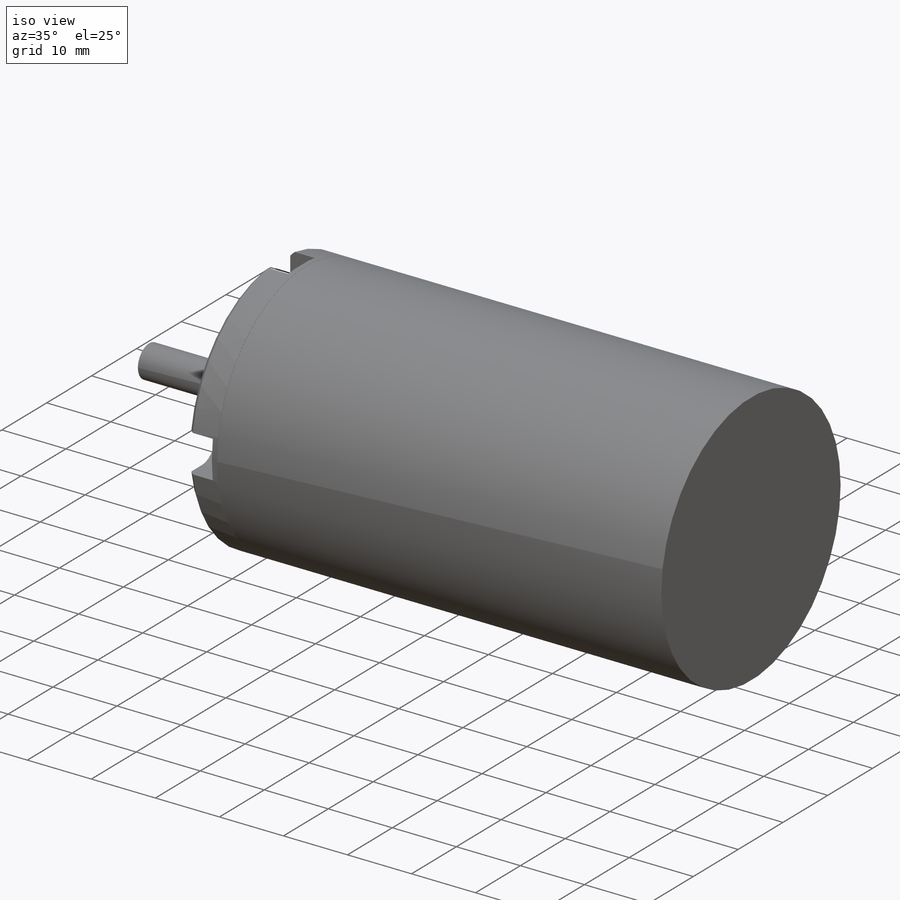
[diagram: iso view]
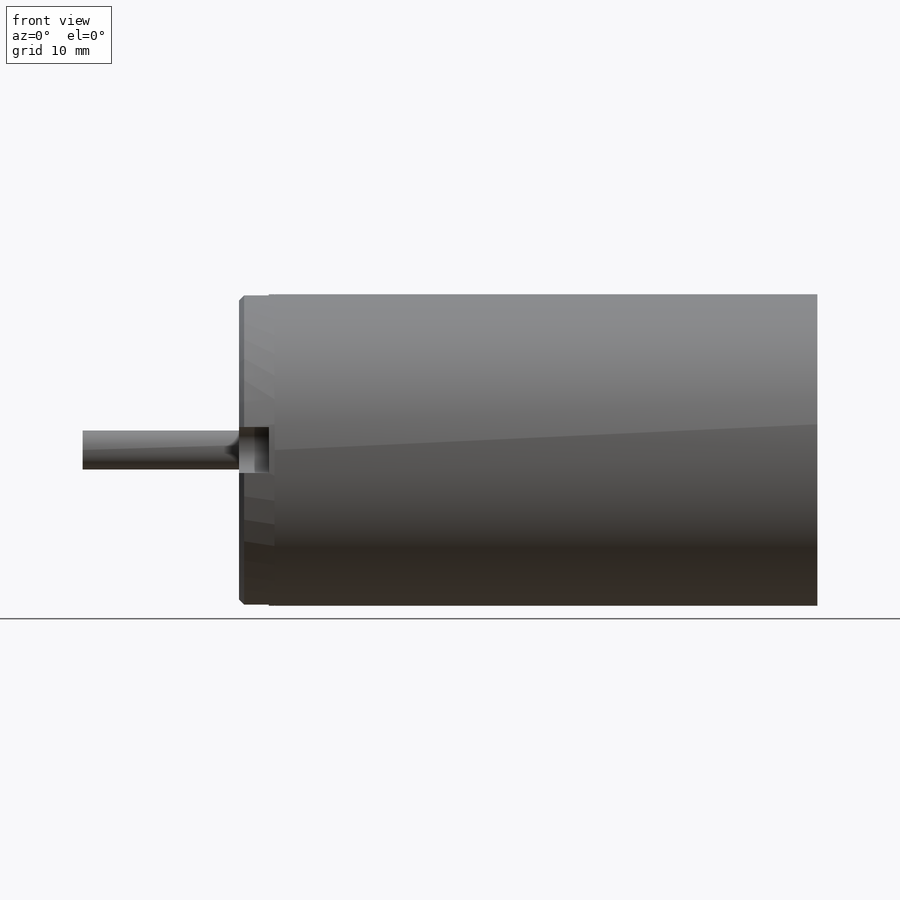
[diagram: front view]
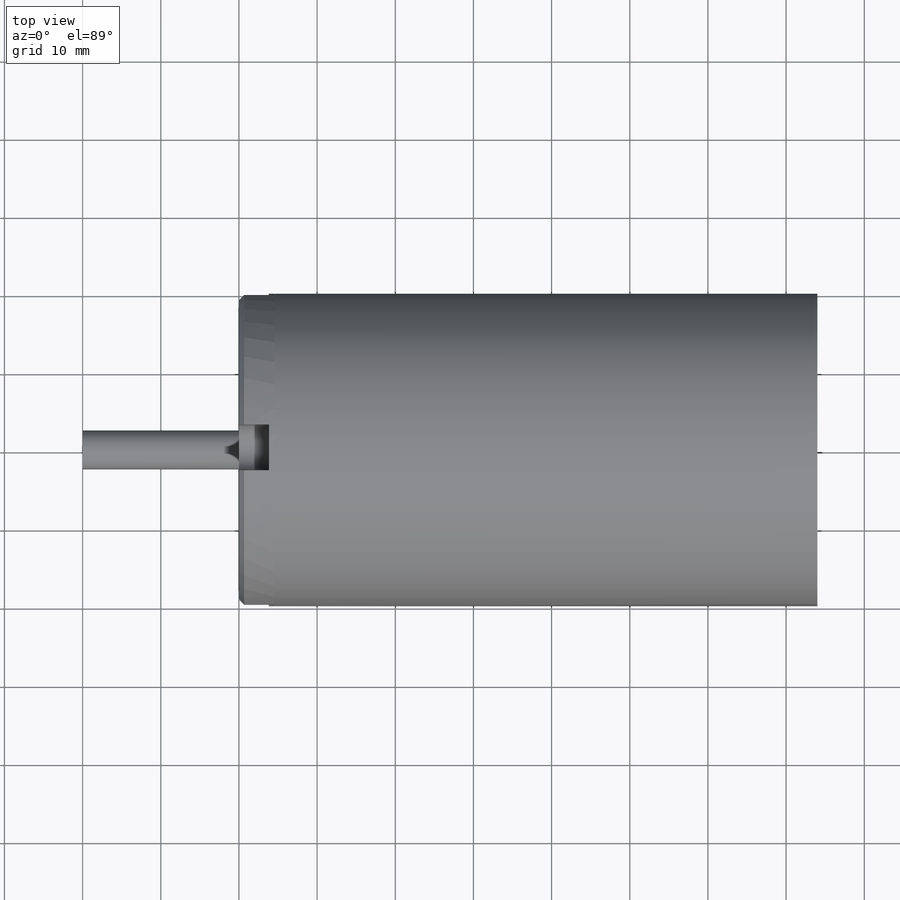
[diagram: top view]
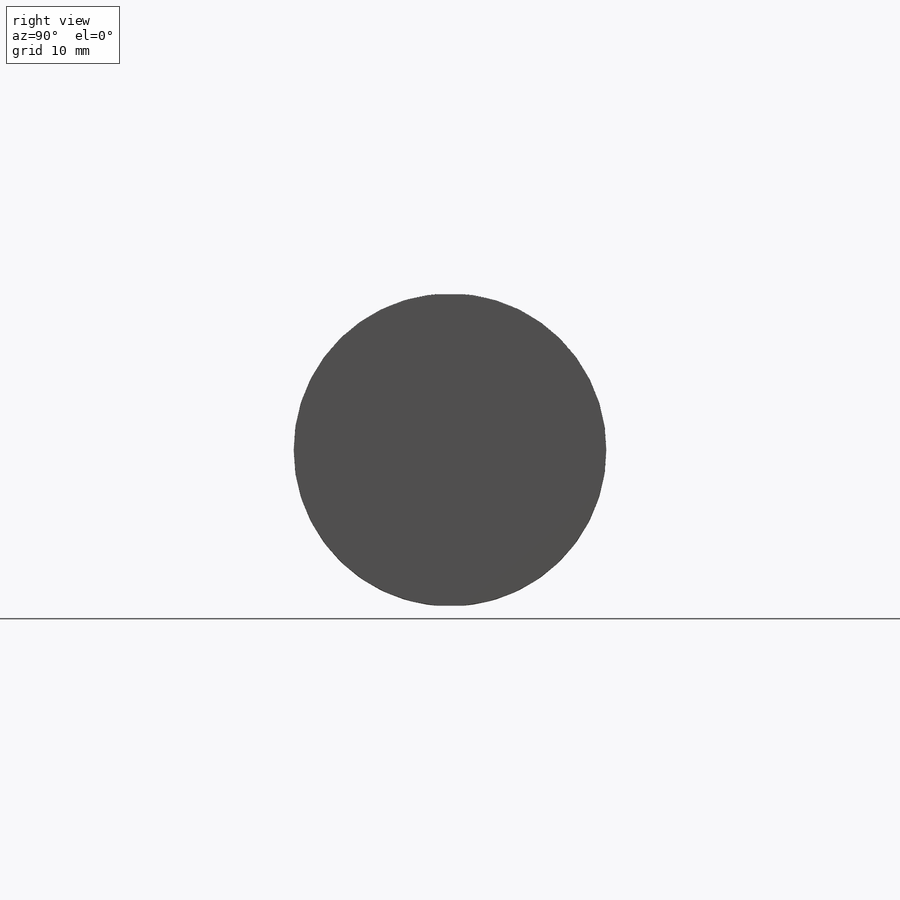
[diagram: right view]
SOLIDWORKS PART (.sldprt)
format: sldprt  version: not decoded by parser v0  size: 227,328 bytes
history: native  units: mm
features: sketch x6, extrude x2, cut_extrude x2, material x1, cut_revolve x1 (+11 scaffold rows collapsed)
feature tree (23):
  scaffold x11  (default folders/planes/origin — collapsed)
  material  "Orange anodized aluminum"
  sketch  "Sketch3"
  sketch  "Sketch1"  dims[D1=40.0mm]
  extrude  "Boss-Extrude1"  Depth=74mm
  sketch  "Sketch5"
  cut_revolve  "Cut-Revolve1"  Angle=360deg
  sketch  "Sketch2"  dims[D1=~2.623511mm]
  extrude  "Boss-Extrude2"  Depth=20mm
  sketch  "Sketch6"  dims[D1=4.0]
  cut_extrude  "Cut-Extrude1"  Depth=3.81mm
  sketch  "Sketch7"  dims[c1.D1=~13.388021mm c2.D1=15.0deg c2.D2=6.0]
  cut_extrude  "Cut-Extrude2"  Depth=8.89mm
decode coverage: 9 of 11 modeling features carry decoded parameters
note: ~ marks probable driven/reference dimensions
note: suppression state not decoded; provenance and decode notes live in map.json
